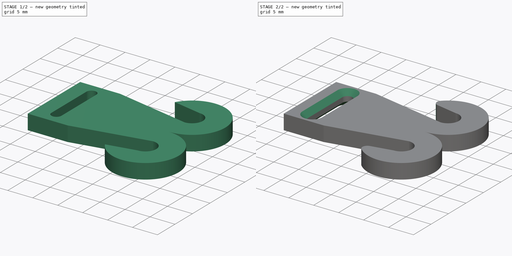
[diagram: build sequence overview — one tinted view per stage of 2, left to right]
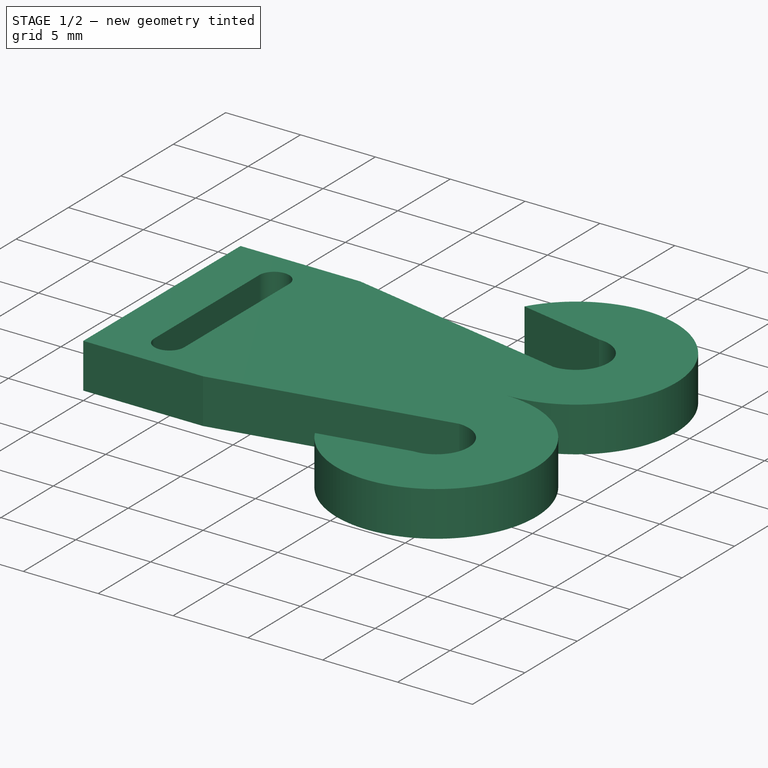
[diagram: stage 1 of 2 — iso view after this stage's code; geometry added in this stage tinted green]
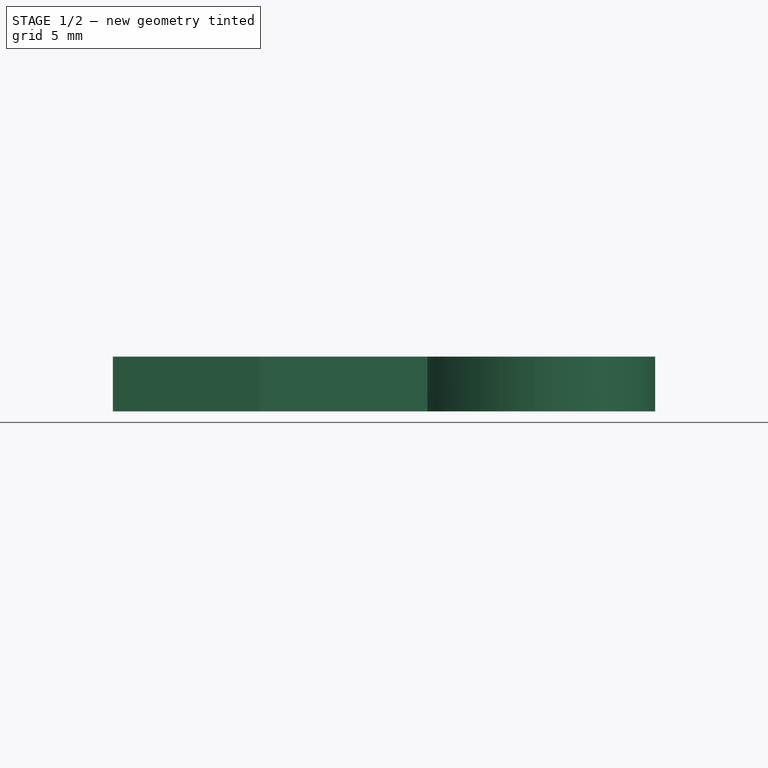
[diagram: stage 1 of 2 — front view after this stage's code; geometry added in this stage tinted green]
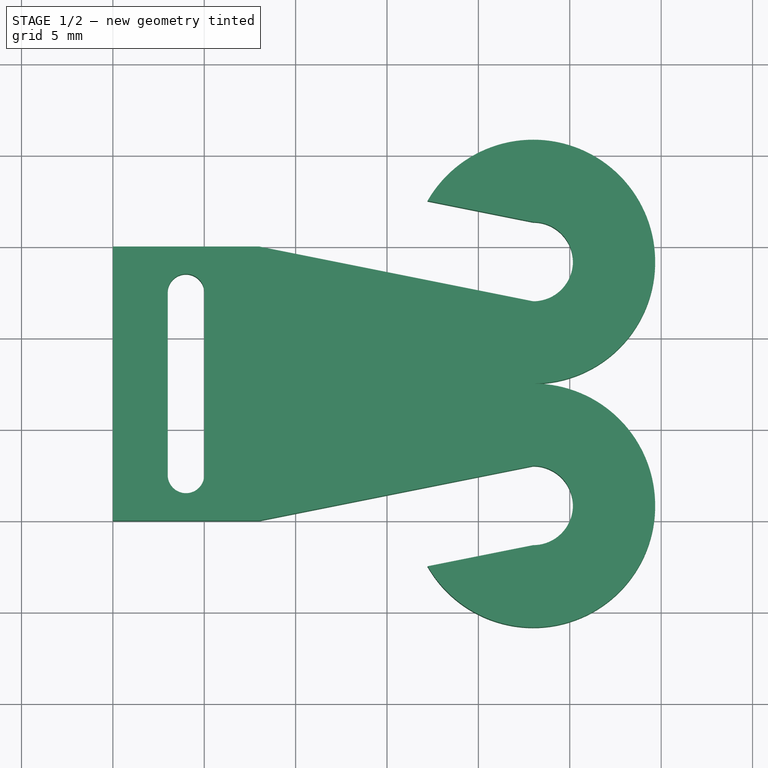
[diagram: stage 1 of 2 — top view after this stage's code; geometry added in this stage tinted green]
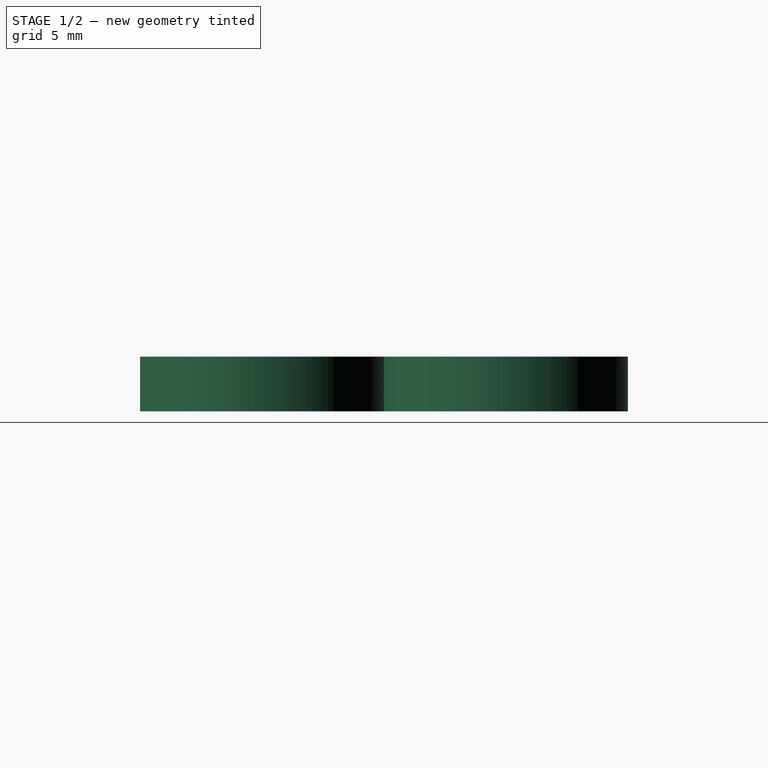
[diagram: stage 1 of 2 — right view after this stage's code; geometry added in this stage tinted green]
FCSTD DOCUMENT  (FreeCAD 0.18R4 (GitTag))
Label: earsaverv4
License: All rights reserved
LicenseURL: http://en.wikipedia.org/wiki/All_rights_reserved
objects: Sketcher::SketchObject×2, PartDesign::Pad×1, PartDesign::Pocket×1, PartDesign::Chamfer×1, PartDesign::Fillet×1, PartDesign::Body×1
note: 9 computed .brp shape members not serialized (recipe doc carries the construction recipe); baked Part::Feature solids carry a one-line shape summary decoded from their .brp

FEATURE [Sketcher::SketchObject] Sketch
  MapMode = 5
  Support = -> [XY_Plane]
  sketch-geometry (12):
    g0: LineSegment StartX=0 StartY=15 StartZ=0 EndX=0 EndY=0 EndZ=0
    g1: ArcOfCircle CenterX=23 CenterY=14.1718 CenterZ=0 NormalX=0 NormalY=0 NormalZ=1 AngleXU=0 Radius=6.67177 StartAngle=4.71239 EndAngle=8.9025
    g2: ArcOfCircle CenterX=23 CenterY=0.828233 CenterZ=0 NormalX=0 NormalY=0 NormalZ=1 AngleXU=0 Radius=6.67177 StartAngle=3.66387 EndAngle=7.85398
    g3: ArcOfCircle CenterX=23 CenterY=14.1718 CenterZ=0 NormalX=0 NormalY=0 NormalZ=1 AngleXU=0 Radius=2.17177 StartAngle=4.71239 EndAngle=7.85398
    g4: ArcOfCircle CenterX=23 CenterY=0.828233 CenterZ=0 NormalX=0 NormalY=0 NormalZ=1 AngleXU=0 Radius=2.17177 StartAngle=4.71239 EndAngle=7.85398
    g5: LineSegment StartX=17.2177 StartY=17.5 StartZ=0 EndX=23 EndY=16.3435 EndZ=0
    g6: LineSegment StartX=23 StartY=-1.34353 StartZ=0 EndX=17.2177 EndY=-2.5 EndZ=0
    g7: LineSegment StartX=0 StartY=15 StartZ=0 EndX=8 EndY=15 EndZ=0
    g8: LineSegment StartX=0 StartY=0 StartZ=0 EndX=8 EndY=0 EndZ=0
    g9: LineSegment StartX=8 StartY=0 StartZ=0 EndX=23 EndY=3 EndZ=0
    g10: LineSegment StartX=8 StartY=15 StartZ=0 EndX=23 EndY=12 EndZ=0
    g11: GeomPoint X=0 Y=7.5 Z=0
  constraints (35):
    c: Vertical(g0)
    c: DistanceY(g0,g0) = 15
    c: Coincident(g2,g1)
    c: Equal(g2,g1)
    c: Vertical(g2,g1)
    c: Vertical(g1,g1)
    c: Vertical(g1,g2)
    c: DistanceY(g4,g1) = 4.5
    c: Vertical(g3,g1)
    c: Coincident(g5,g1)
    c: Coincident(g5,g3)
    c: Coincident(g4,g6)
    c: Coincident(g6,g2)
    c: Coincident(g2,g4)
    c: Coincident(g3,g1)
    c: Vertical(g3,g4)
    c: Coincident(g0,g7)
    c: Coincident(g7,g10)
    c: Coincident(g10,g3)
    c: Coincident(g8,g0)
    c: Coincident(g0,g-1)
    c: Coincident(g8,g9)
    c: Coincident(g9,g4)
    c: Horizontal(g7)
    c: DistanceX(g7,g7) = 8
    c: Equal(g8,g7)
    c: Equal(g10,g9)
    c: Parallel(g6,g9)
    c: DistanceY(g2,g1) = 20
    c: DistanceX(g8,g4) = 15
    c: Horizontal(g8)
    c: Parallel(g10,g5)
    c: Symmetric(g0,g0,g11)
    c: Horizontal(g1,g11)
    c: Vertical(g4,g2)
FEATURE [PartDesign::Pad] Pad
  Length = 3
  Length2 = 100
  Profile = -> Sketch
  Type = 0
FEATURE [Sketcher::SketchObject] Sketch001
  ExternalGeometry = -> [Pad]
  MapMode = 5
  Placement = pos=(0,0,3) rot=(0,0,1;0rad)
  Support = -> [Pad]
  sketch-geometry (6):
    g0: ArcOfCircle CenterX=4 CenterY=12.5 CenterZ=0 NormalX=0 NormalY=0 NormalZ=1 AngleXU=0 Radius=1 StartAngle=1e-15 EndAngle=3.14159
    g1: ArcOfCircle CenterX=4 CenterY=2.5 CenterZ=0 NormalX=0 NormalY=0 NormalZ=1 AngleXU=0 Radius=1 StartAngle=3.14159 EndAngle=6.28319
    g2: LineSegment StartX=3 StartY=12.5 StartZ=0 EndX=3 EndY=2.5 EndZ=0
    g3: LineSegment StartX=5 StartY=12.5 StartZ=0 EndX=5 EndY=2.5 EndZ=0
    g4: GeomPoint X=3 Y=7.5 Z=0
    g5: GeomPoint X=0 Y=7.5 Z=0
  constraints (12):
    c: Tangent(g0,g3) = 1.5708
    c: Tangent(g0,g2) = -1.5708
    c: Tangent(g2,g1) = -1.5708
    c: Tangent(g3,g1) = 1.5708
    c: Vertical(g2)
    c: Equal(g0,g1)
    c: Radius(g1) = 1
    c: DistanceX(g-1,g1) = 4
    c: DistanceY(g2,g2) = 10
    c: Symmetric(g1,g0,g4)
    c: Symmetric(g-1,g-3,g5)
    c: Horizontal(g5,g4)
FEATURE [PartDesign::Pocket] Pocket
  BaseFeature = -> Pad
  Length = 5
  Length2 = 100
  Profile = -> Sketch001
  Type = 0
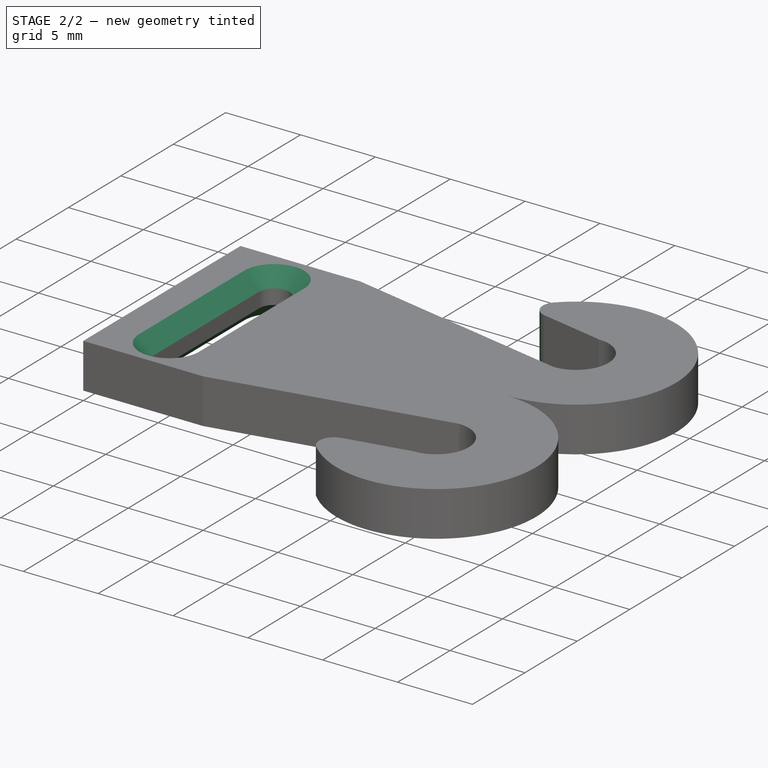
[diagram: stage 2 of 2 — iso view after this stage's code; geometry added in this stage tinted green]
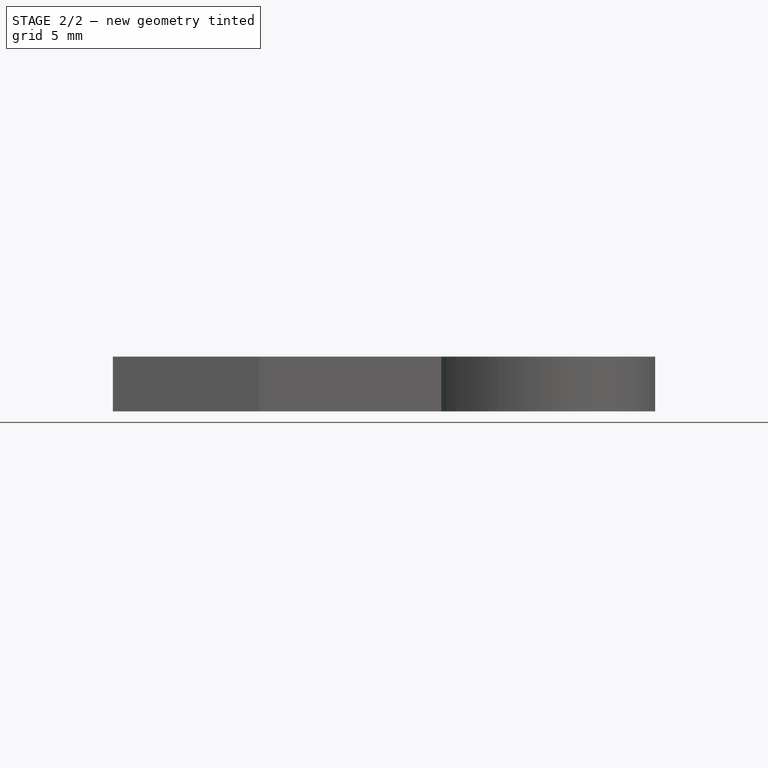
[diagram: stage 2 of 2 — front view after this stage's code; geometry added in this stage tinted green]
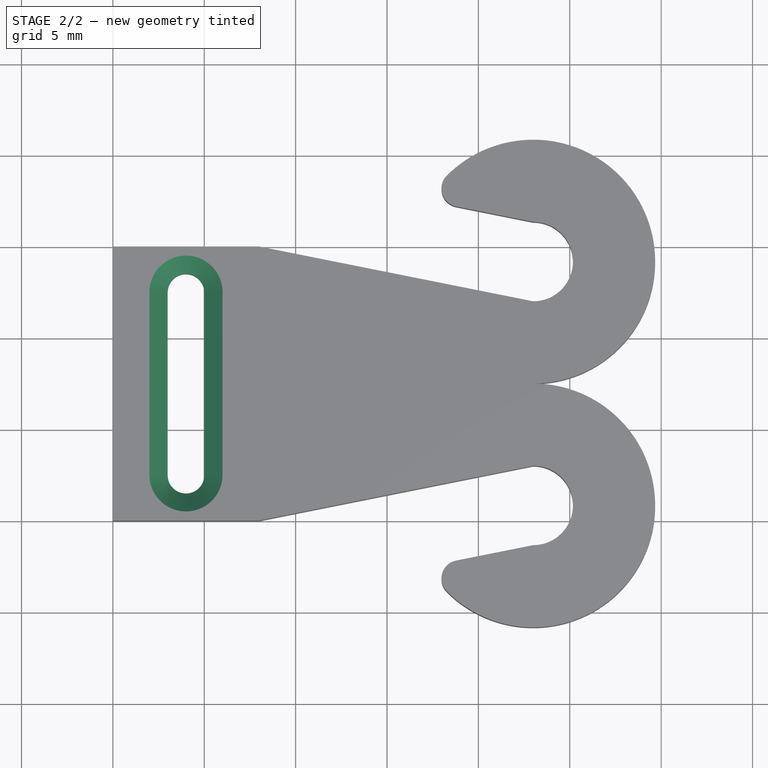
[diagram: stage 2 of 2 — top view after this stage's code; geometry added in this stage tinted green]
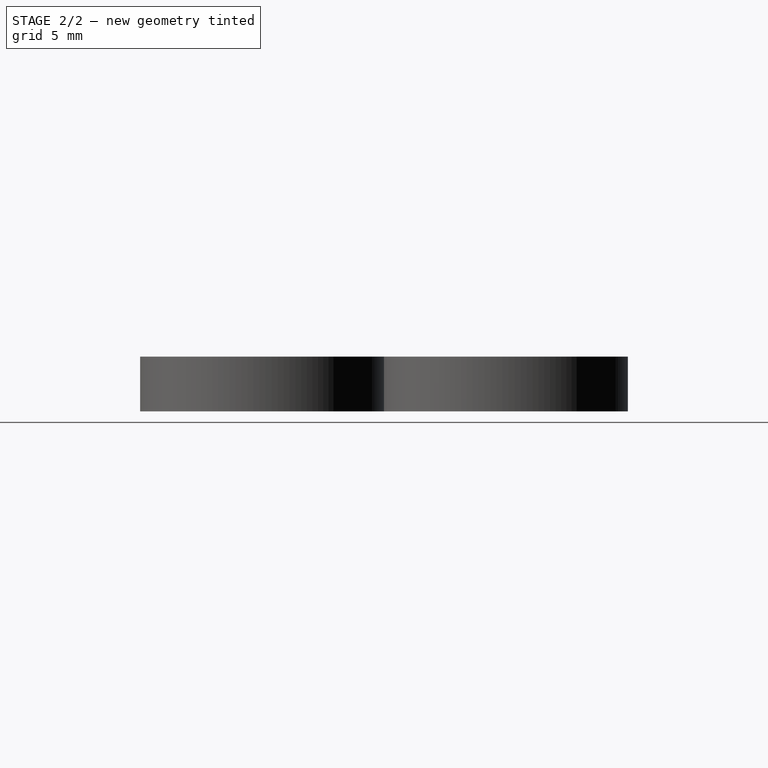
[diagram: stage 2 of 2 — right view after this stage's code; geometry added in this stage tinted green]
FEATURE [PartDesign::Chamfer] Chamfer
  Base = -> Pocket [Edge20,Edge34]
  BaseFeature = -> Pocket
  Size = 1
FEATURE [PartDesign::Fillet] Fillet
  Base = -> Chamfer [Edge43,Edge37]
  BaseFeature = -> Chamfer
  Radius = 1
FEATURE [PartDesign::Body] Body
  Group = -> [Sketch,Pad,Sketch001,Pocket,Chamfer,Fillet]
  Origin = -> Origin
  Tip = -> Fillet
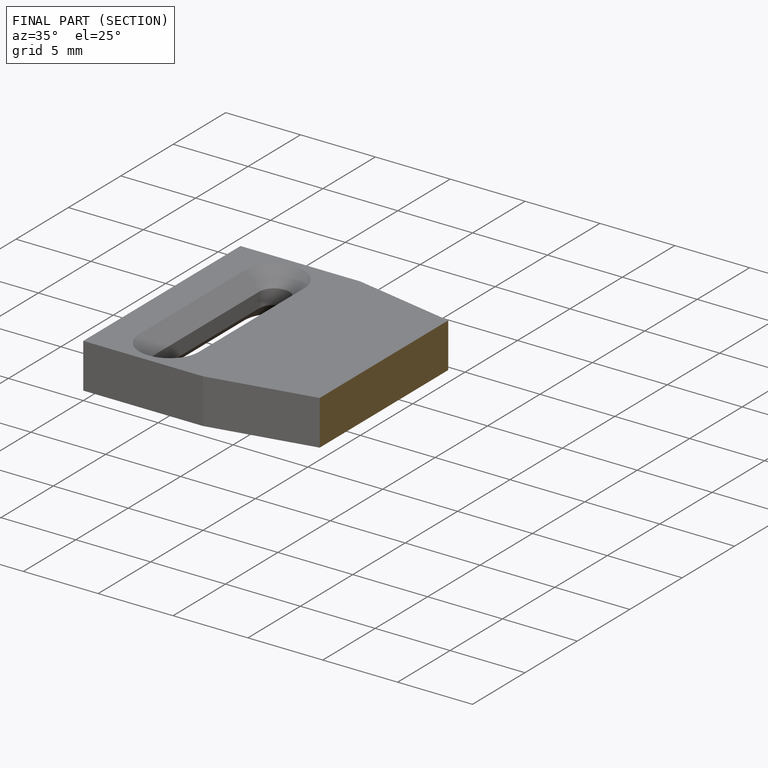
[diagram: finished part — half-section view (interior)]
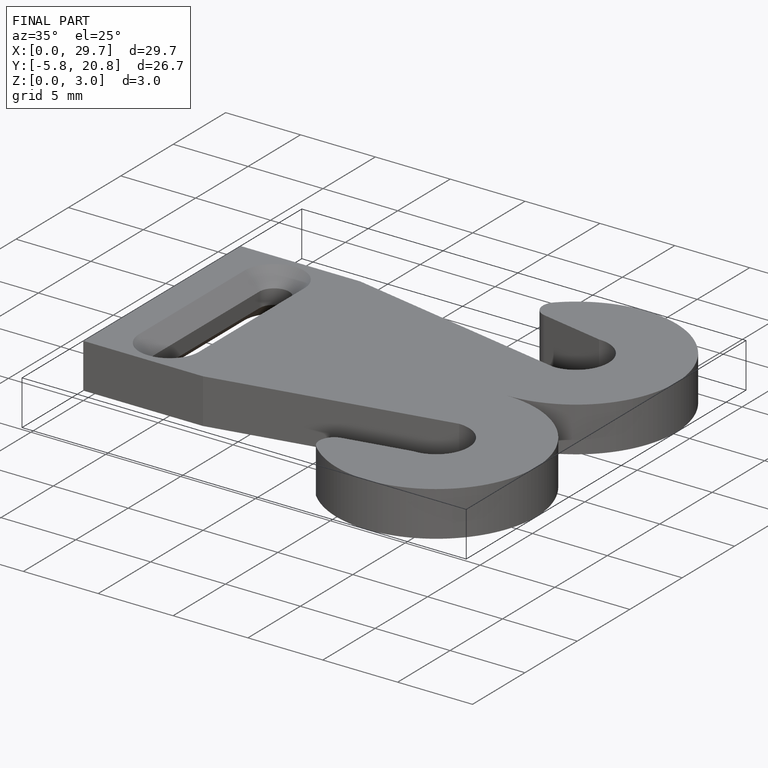
[diagram: finished part — iso view with bounding-box wireframe]
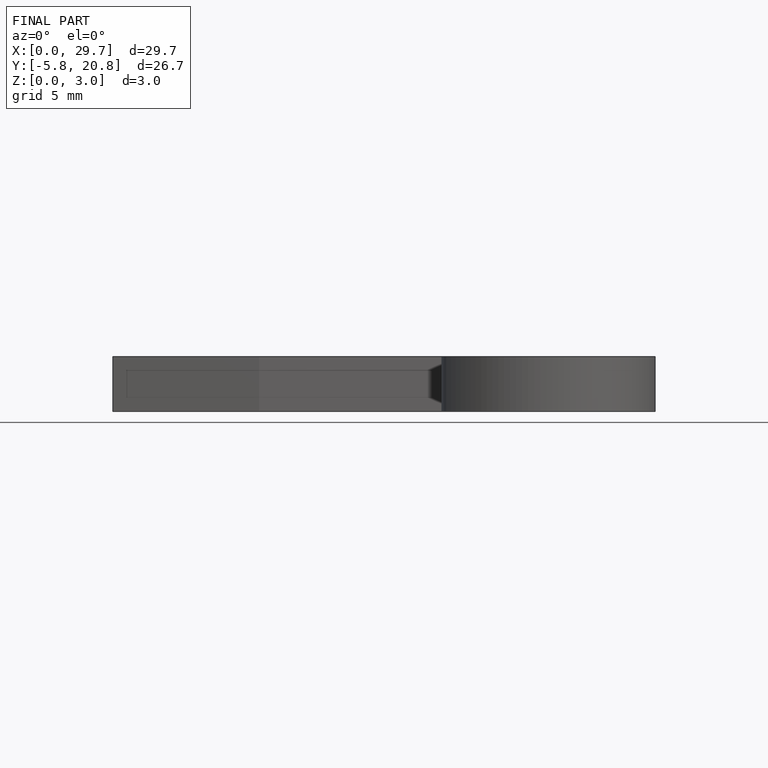
[diagram: finished part — front view with bounding-box wireframe]
